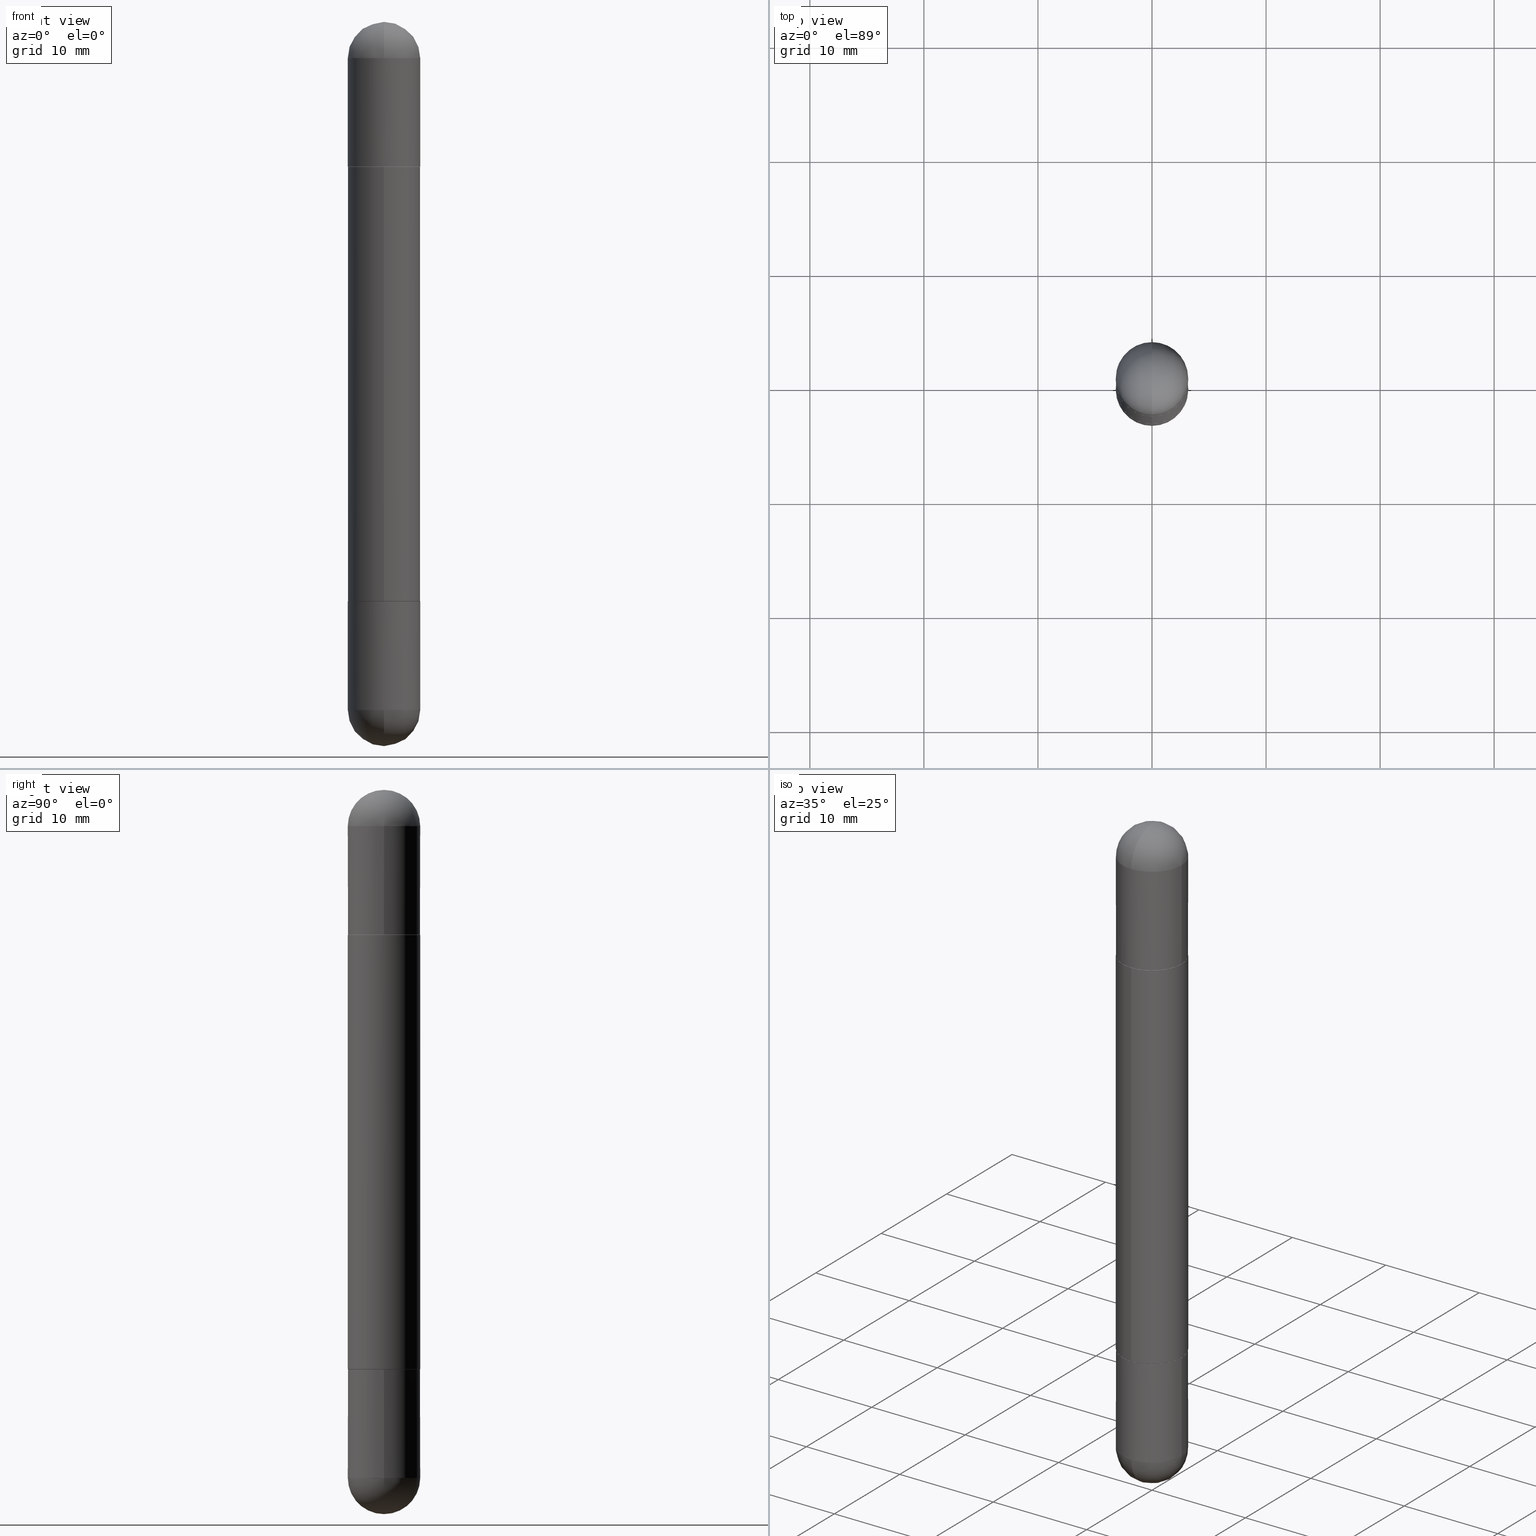
[diagram: canonical four-view strip — front | top / right | iso, engineering-drawing reading convention]
A machine part, canonical four-view strip (front | top / right | iso — engineering-drawing reading convention). The complete STEP part file that produces these views, byte-faithful:
ISO-10303-21;
HEADER;
FILE_DESCRIPTION (( 'STEP AP203' ),
    '1' );
FILE_NAME ('31232.STEP',
    '2024-03-01T12:41:17',
    ( '' ),
    ( '' ),
    'SwSTEP 2.0',
    'SolidWorks 2023',
    '' );
FILE_SCHEMA (( 'CONFIG_CONTROL_DESIGN' ));
ENDSEC;

DATA;
#1 = CARTESIAN_POINT ( 'NONE',  ( 0.1250000000000000000, -8.510485763430165164E-15, -0.1250000000000004441 ) ) ;
#2 = CARTESIAN_POINT ( 'NONE',  ( 4.890937612370273194E-29, -6.982962677686291165E-15, -0.5000000000000006661 ) ) ;
#3 = VERTEX_POINT ( 'NONE', #607 ) ;
#4 = LINE ( 'NONE', #463, #551 ) ;
#5 = DIRECTION ( 'NONE',  ( 1.000000000000000000, -6.982962677686265922E-15, -4.883557194083112901E-29 ) ) ;
#6 = DIRECTION ( 'NONE',  ( 4.851104656541418659E-15, 0.7071067811866162955, -0.7071067811864787389 ) ) ;
#7 = AXIS2_PLACEMENT_3D ( 'NONE', #44, #98, #654 ) ;
#8 = AXIS2_PLACEMENT_3D ( 'NONE', #104, #293, #492 ) ;
#9 = EDGE_LOOP ( 'NONE', ( #51, #401, #313, #57, #394 ) ) ;
#10 = CARTESIAN_POINT ( 'NONE',  ( 5.476868636775814291E-29, -8.766450547892521992E-15, -0.1250000000000004441 ) ) ;
#11 = CIRCLE ( 'NONE', #537, 0.1250000000000000000 ) ;
#12 = CYLINDRICAL_SURFACE ( 'NONE', #372, 0.1250000000000000000 ) ;
#13 = CONICAL_SURFACE ( 'NONE', #424, 0.1239999999999999991, 0.7853981633975420928 ) ;
#14 = VERTEX_POINT ( 'NONE', #92 ) ;
#15 = DIRECTION ( 'NONE',  ( -2.444771269362750222E-29, 3.492480251274133284E-15, 1.000000000000000000 ) ) ;
#16 = DIRECTION ( 'NONE',  ( 1.000000000000000000, -6.982962677686266711E-15, 0.000000000000000000 ) ) ;
#17 = ORIENTED_EDGE ( 'NONE', *, *, #34, .F. ) ;
#18 = FACE_OUTER_BOUND ( 'NONE', #149, .T. ) ;
#19 = CARTESIAN_POINT ( 'NONE',  ( 4.887097767456136437E-29, -6.981468022296989984E-15, -0.5010000000000010001 ) ) ;
#20 = ORIENTED_EDGE ( 'NONE', *, *, #578, .T. ) ;
#21 = AXIS2_PLACEMENT_3D ( 'NONE', #758, #764, #121 ) ;
#22 = CIRCLE ( 'NONE', #39, 0.1250000000000001943 ) ;
#23 = MECHANICAL_CONTEXT ( 'NONE', #333, 'mechanical' ) ;
#24 = CARTESIAN_POINT ( 'NONE',  ( 4.889542538725499884E-29, -6.984960502548264991E-15, -1.999999999999999778 ) ) ;
#25 = EDGE_LOOP ( 'NONE', ( #691, #745, #664, #766 ) ) ;
#26 = AXIS2_PLACEMENT_3D ( 'NONE', #641, #76, #128 ) ;
#27 = APPLICATION_CONTEXT ( 'configuration controlled 3d designs of mechanical parts and assemblies' ) ;
#28 = LENGTH_MEASURE_WITH_UNIT ( LENGTH_MEASURE( 0.02539999999999999897 ), #291 );
#29 = ADVANCED_FACE ( 'NONE', ( #229 ), #95, .F. ) ;
#30 = DIRECTION ( 'NONE',  ( -6.982962677686265133E-15, -1.000000000000000000, 0.000000000000000000 ) ) ;
#31 = EDGE_LOOP ( 'NONE', ( #720, #572, #760, #679, #105 ) ) ;
#32 = CARTESIAN_POINT ( 'NONE',  ( 4.887097767456136437E-29, -6.981468022296989984E-15, -0.5010000000000010001 ) ) ;
#33 = CARTESIAN_POINT ( 'NONE',  ( 5.476868636775814291E-29, -8.766450547892521992E-15, -0.1250000000000004441 ) ) ;
#34 = EDGE_CURVE ( 'NONE', #805, #3, #328, .T. ) ;
#35 = ORIENTED_EDGE ( 'NONE', *, *, #646, .F. ) ;
#36 = ORIENTED_EDGE ( 'NONE', *, *, #343, .T. ) ;
#37 = AXIS2_PLACEMENT_3D ( 'NONE', #815, #113, #487 ) ;
#38 = PERSON_AND_ORGANIZATION_ROLE ( 'design_owner' ) ;
#39 = AXIS2_PLACEMENT_3D ( 'NONE', #283, #474, #40 ) ;
#40 = DIRECTION ( 'NONE',  ( 6.860497997771529196E-15, 1.000000000000000000, 0.000000000000000000 ) ) ;
#41 = DIRECTION ( 'NONE',  ( 1.000000000000000000, -6.982962677686266711E-15, 0.000000000000000000 ) ) ;
#42 = CC_DESIGN_APPROVAL ( #294, ( #649 ) ) ;
#43 = CARTESIAN_POINT ( 'NONE',  ( 0.1250000000000000000, -8.728703347107833388E-16, 6.095220969744919741E-30 ) ) ;
#44 = CARTESIAN_POINT ( 'NONE',  ( 0.000000000000000000, 0.000000000000000000, -2.500000000000000444 ) ) ;
#45 = VERTEX_POINT ( 'NONE', #485 ) ;
#46 = DIRECTION ( 'NONE',  ( -6.982962677686265922E-15, -1.000000000000000000, -3.304654831045479808E-15 ) ) ;
#47 = CARTESIAN_POINT ( 'NONE',  ( 4.890937612370273194E-29, -6.982962677686291165E-15, -2.000000000000000000 ) ) ;
#48 = ADVANCED_FACE ( 'NONE', ( #793 ), #13, .T. ) ;
#49 = AXIS2_PLACEMENT_3D ( 'NONE', #167, #675, #101 ) ;
#50 = DIRECTION ( 'NONE',  ( -2.444771269362750222E-29, 3.492480251274133284E-15, 1.000000000000000000 ) ) ;
#51 = ORIENTED_EDGE ( 'NONE', *, *, #440, .F. ) ;
#52 = ADVANCED_FACE ( 'NONE', ( #482 ), #409, .T. ) ;
#53 = CARTESIAN_POINT ( 'NONE',  ( 4.889542538725501005E-29, -6.984960502548265780E-15, -2.000000000000000000 ) ) ;
#54 = PRODUCT_DEFINITION ( 'UNKNOWN', '', #649, #817 ) ;
#55 = DIRECTION ( 'NONE',  ( -6.982962677686265922E-15, -1.000000000000000000, -3.492480251274133284E-15 ) ) ;
#56 = ADVANCED_FACE ( 'NONE', ( #665 ), #160, .T. ) ;
#57 = ORIENTED_EDGE ( 'NONE', *, *, #476, .F. ) ;
#58 = DIRECTION ( 'NONE',  ( 1.000000000000000000, -6.982962677686270655E-15, 0.000000000000000000 ) ) ;
#59 = AXIS2_PLACEMENT_3D ( 'NONE', #2, #65, #263 ) ;
#60 = AXIS2_PLACEMENT_3D ( 'NONE', #419, #674, #661 ) ;
#61 = ORIENTED_EDGE ( 'NONE', *, *, #440, .T. ) ;
#62 = DIRECTION ( 'NONE',  ( -2.444771269362750222E-29, 3.492480251274133284E-15, -1.000000000000000000 ) ) ;
#63 = AXIS2_PLACEMENT_3D ( 'NONE', #385, #638, #642 ) ;
#64 = DIRECTION ( 'NONE',  ( 2.445468806185136597E-29, -3.491481338843145583E-15, 1.000000000000000000 ) ) ;
#65 = DIRECTION ( 'NONE',  ( 2.445468806185136597E-29, -3.491481338843145583E-15, 1.000000000000000000 ) ) ;
#66 = EDGE_LOOP ( 'NONE', ( #429, #475 ) ) ;
#67 = DIRECTION ( 'NONE',  ( 1.000000000000000000, -6.982962677686266711E-15, 0.000000000000000000 ) ) ;
#68 = DIRECTION ( 'NONE',  ( 2.445468806185136597E-29, -3.491481338843145583E-15, 1.000000000000000000 ) ) ;
#69 = DIRECTION ( 'NONE',  ( -1.000000000000000000, 6.982962677686265922E-15, 4.876176775795935793E-29 ) ) ;
#70 = ORIENTED_EDGE ( 'NONE', *, *, #349, .F. ) ;
#71 = ADVANCED_FACE ( 'NONE', ( #602 ), #163, .T. ) ;
#72 = CARTESIAN_POINT ( 'NONE',  ( 5.807988414689700538E-29, -8.292268179752471696E-15, -0.1250000000000004441 ) ) ;
#73 = DIRECTION ( 'NONE',  ( 1.000000000000000000, -6.982962677686266711E-15, 4.876176775795935793E-29 ) ) ;
#74 = AXIS2_PLACEMENT_3D ( 'NONE', #32, #544, #222 ) ;
#75 = ORIENTED_EDGE ( 'NONE', *, *, #563, .F. ) ;
#76 = DIRECTION ( 'NONE',  ( -2.445468806185136597E-29, 3.491481338843145583E-15, 1.000000000000000000 ) ) ;
#77 = PERSON ( 'UNSPECIFIED', 'UNSPECIFIED', 'UNSPECIFIED', ('UNSPECIFIED'), ('UNSPECIFIED'), ('UNSPECIFIED') ) ;
#78 = LINE ( 'NONE', #125, #305 ) ;
#79 = ORIENTED_EDGE ( 'NONE', *, *, #132, .T. ) ;
#80 = CARTESIAN_POINT ( 'NONE',  ( -8.575622497213856334E-16, -0.1250000000000086320, -0.1250000000000008882 ) ) ;
#81 = DIRECTION ( 'NONE',  ( 2.438088387897960049E-29, -3.491481338843145188E-15, 1.000000000000000000 ) ) ;
#82 = VERTEX_POINT ( 'NONE', #99 ) ;
#83 = DIRECTION ( 'NONE',  ( -2.445468806185136597E-29, 3.491481338843145583E-15, 1.000000000000000000 ) ) ;
#84 = ORIENTED_EDGE ( 'NONE', *, *, #426, .T. ) ;
#85 = CARTESIAN_POINT ( 'NONE',  ( 8.575622497214918338E-16, 0.1249999999999932554, -0.5010000000000006670 ) ) ;
#86 = VERTEX_POINT ( 'NONE', #355 ) ;
#87 = DIRECTION ( 'NONE',  ( 2.444771269362750222E-29, -3.492480251274133284E-15, 1.000000000000000000 ) ) ;
#88 = PERSON_AND_ORGANIZATION_ROLE ( 'design_supplier' ) ;
#89 = EDGE_CURVE ( 'NONE', #14, #260, #430, .T. ) ;
#90 = CARTESIAN_POINT ( 'NONE',  ( 5.476868636775814291E-29, -8.766450547892521992E-15, -2.375000000000000000 ) ) ;
#91 = ORIENTED_EDGE ( 'NONE', *, *, #89, .F. ) ;
#92 = CARTESIAN_POINT ( 'NONE',  ( -8.728703347107444874E-16, -0.1250000000000044964, -1.250000000000000222 ) ) ;
#93 =( CONVERSION_BASED_UNIT ( 'INCH', #28 ) LENGTH_UNIT ( ) NAMED_UNIT ( #504 ) );
#94 = DIRECTION ( 'NONE',  ( -2.444771269362750222E-29, 3.492480251274133284E-15, -1.000000000000000000 ) ) ;
#95 = PLANE ( 'NONE',  #699 ) ;
#96 = CIRCLE ( 'NONE', #775, 0.1250000000000000000 ) ;
#97 = CARTESIAN_POINT ( 'NONE',  ( 0.000000000000000000, 0.000000000000000000, 0.000000000000000000 ) ) ;
#98 = DIRECTION ( 'NONE',  ( -2.444771269362750222E-29, 3.492480251274133284E-15, -1.000000000000000000 ) ) ;
#99 = CARTESIAN_POINT ( 'NONE',  ( 8.728703347108403340E-16, 0.1249999999999915623, -0.1250000000000000000 ) ) ;
#100 = CIRCLE ( 'NONE', #633, 0.1239999999999999991 ) ;
#101 = DIRECTION ( 'NONE',  ( 1.000000000000000000, -6.982962677686266711E-15, 4.876176775795935793E-29 ) ) ;
#102 = EDGE_CURVE ( 'NONE', #437, #318, #546, .T. ) ;
#103 = DIRECTION ( 'NONE',  ( -2.445468806185136597E-29, 3.491481338843145583E-15, -1.000000000000000000 ) ) ;
#104 = CARTESIAN_POINT ( 'NONE',  ( 4.887097767456136437E-29, -6.981468022296989984E-15, -0.5010000000000010001 ) ) ;
#105 = ORIENTED_EDGE ( 'NONE', *, *, #718, .T. ) ;
#106 = EDGE_CURVE ( 'NONE', #741, #241, #630, .T. ) ;
#107 = VECTOR ( 'NONE', #503, 39.37007874015748143 ) ;
#108 = AXIS2_PLACEMENT_3D ( 'NONE', #308, #570, #801 ) ;
#109 = DIRECTION ( 'NONE',  ( 2.445468806185136597E-29, -3.491481338843145583E-15, 1.000000000000000000 ) ) ;
#110 = APPROVAL_STATUS ( 'not_yet_approved' ) ;
#111 = CIRCLE ( 'NONE', #298, 0.1250000000000001943 ) ;
#112 = EDGE_CURVE ( 'NONE', #45, #273, #459, .T. ) ;
#113 = DIRECTION ( 'NONE',  ( -2.445468806185136597E-29, 3.491481338843145583E-15, 1.000000000000000000 ) ) ;
#114 = ORIENTED_EDGE ( 'NONE', *, *, #728, .F. ) ;
#115 = DIRECTION ( 'NONE',  ( -6.982962677686265922E-15, -1.000000000000000000, -3.304654831045479808E-15 ) ) ;
#116 = ORIENTED_EDGE ( 'NONE', *, *, #808, .F. ) ;
#117 = PRODUCT_RELATED_PRODUCT_CATEGORY ( 'detail', '', ( #515 ) ) ;
#118 = LINE ( 'NONE', #374, #657 ) ;
#119 = AXIS2_PLACEMENT_3D ( 'NONE', #443, #5, #580 ) ;
#120 = AXIS2_PLACEMENT_3D ( 'NONE', #610, #407, #228 ) ;
#121 = DIRECTION ( 'NONE',  ( 1.000000000000000000, -6.982962677686270655E-15, 0.000000000000000000 ) ) ;
#122 = ORIENTED_EDGE ( 'NONE', *, *, #792, .F. ) ;
#123 = DIRECTION ( 'NONE',  ( -2.445468806185136597E-29, 3.491481338843145583E-15, -1.000000000000000000 ) ) ;
#124 = DIRECTION ( 'NONE',  ( -2.445468806185136877E-29, 3.491481338843145188E-15, -1.000000000000000000 ) ) ;
#125 = CARTESIAN_POINT ( 'NONE',  ( 8.507017517237187427E-16, 0.1239999999999930186, -0.5000000000000005551 ) ) ;
#126 = ADVANCED_FACE ( 'NONE', ( #477 ), #729, .F. ) ;
#127 = ORIENTED_EDGE ( 'NONE', *, *, #808, .T. ) ;
#128 = DIRECTION ( 'NONE',  ( 1.000000000000000000, -6.982962677686270655E-15, 0.000000000000000000 ) ) ;
#129 = CARTESIAN_POINT ( 'NONE',  ( -0.1250000000000000000, -6.749437009019255804E-15, -2.000000000000000000 ) ) ;
#130 = CARTESIAN_POINT ( 'NONE',  ( -0.1250000000000000000, 8.881784197001252323E-16, -6.148668862818632227E-30 ) ) ;
#131 = EDGE_LOOP ( 'NONE', ( #659, #368 ) ) ;
#132 = EDGE_CURVE ( 'NONE', #549, #805, #501, .T. ) ;
#133 = LINE ( 'NONE', #266, #794 ) ;
#134 = AXIS2_PLACEMENT_3D ( 'NONE', #379, #64, #311 ) ;
#135 = FACE_OUTER_BOUND ( 'NONE', #771, .T. ) ;
#136 = CONICAL_SURFACE ( 'NONE', #373, 0.1239999999999999991, 0.7853981633975420928 ) ;
#137 = ORIENTED_EDGE ( 'NONE', *, *, #106, .F. ) ;
#138 = EDGE_CURVE ( 'NONE', #461, #539, #221, .T. ) ;
#139 = DIRECTION ( 'NONE',  ( -7.105427357601000281E-15, -1.000000000000000000, 0.000000000000000000 ) ) ;
#140 = VECTOR ( 'NONE', #62, 39.37007874015748143 ) ;
#141 = CARTESIAN_POINT ( 'NONE',  ( 5.787897026856327965E-29, -9.195231672753244292E-15, -2.561107494060246644E-16 ) ) ;
#142 = EDGE_LOOP ( 'NONE', ( #655, #779, #561, #347 ) ) ;
#143 = CARTESIAN_POINT ( 'NONE',  ( 0.000000000000000000, 0.000000000000000000, -2.500000000000000444 ) ) ;
#144 = CARTESIAN_POINT ( 'NONE',  ( 5.476868636775814291E-29, -8.766450547892521992E-15, -0.1250000000000004441 ) ) ;
#145 = ORIENTED_EDGE ( 'NONE', *, *, #576, .T. ) ;
#146 = APPROVAL ( #217, 'UNSPECIFIED' ) ;
#147 = LINE ( 'NONE', #43, #325 ) ;
#148 = DIRECTION ( 'NONE',  ( -2.444771269362750222E-29, 3.492480251274133284E-15, 1.000000000000000000 ) ) ;
#149 = EDGE_LOOP ( 'NONE', ( #199, #716, #496, #181, #331 ) ) ;
#150 = CIRCLE ( 'NONE', #255, 0.1239999999999999991 ) ;
#151 = AXIS2_PLACEMENT_3D ( 'NONE', #438, #631, #248 ) ;
#152 = CARTESIAN_POINT ( 'NONE',  ( 4.887097767456136437E-29, -6.981468022296989984E-15, -0.5010000000000010001 ) ) ;
#153 = APPROVAL_ROLE ( '' ) ;
#154 = DIRECTION ( 'NONE',  ( -6.982962677686265922E-15, -1.000000000000000000, 4.406206441393973340E-15 ) ) ;
#155 = VECTOR ( 'NONE', #650, 39.37007874015748143 ) ;
#156 = EDGE_LOOP ( 'NONE', ( #246, #592, #145, #481 ) ) ;
#157 = CARTESIAN_POINT ( 'NONE',  ( 8.728703347108321496E-16, 0.1249999999999930195, -0.5000000000000001110 ) ) ;
#158 = COORDINATED_UNIVERSAL_TIME_OFFSET ( 5, 0, .BEHIND. ) ;
#159 = CARTESIAN_POINT ( 'NONE',  ( 4.890937612370273194E-29, -6.982962677686291165E-15, -0.5000000000000006661 ) ) ;
#160 = CYLINDRICAL_SURFACE ( 'NONE', #388, 0.1250000000000000000 ) ;
#161 =( NAMED_UNIT ( * ) SI_UNIT ( $, .STERADIAN. ) SOLID_ANGLE_UNIT ( ) );
#162 = DIRECTION ( 'NONE',  ( 2.445468806185136597E-29, -3.491481338843145583E-15, 1.000000000000000000 ) ) ;
#163 = SPHERICAL_SURFACE ( 'NONE', #60, 0.1250000000000001943 ) ;
#164 = PERSON_AND_ORGANIZATION_ROLE ( 'creator' ) ;
#165 = AXIS2_PLACEMENT_3D ( 'NONE', #157, #663, #223 ) ;
#166 = EDGE_CURVE ( 'NONE', #194, #567, #739, .T. ) ;
#167 = CARTESIAN_POINT ( 'NONE',  ( 0.000000000000000000, 0.000000000000000000, 0.000000000000000000 ) ) ;
#168 = ORIENTED_EDGE ( 'NONE', *, *, #198, .T. ) ;
#169 = COORDINATED_UNIVERSAL_TIME_OFFSET ( 5, 0, .BEHIND. ) ;
#170 = DIRECTION ( 'NONE',  ( 1.000000000000000000, -6.860497997771530774E-15, -4.840798879624142912E-29 ) ) ;
#171 = ADVANCED_FACE ( 'NONE', ( #731 ), #726, .T. ) ;
#172 = EDGE_LOOP ( 'NONE', ( #203, #648, #91, #75 ) ) ;
#173 = MANIFOLD_SOLID_BREP ( 'Combine1', #765 ) ;
#174 = MANIFOLD_SOLID_BREP ( 'Mirror4[1]', #356 ) ;
#175 = EDGE_CURVE ( 'NONE', #596, #279, #672, .T. ) ;
#176 = DIRECTION ( 'NONE',  ( -2.444771269362749942E-29, 3.492480251274133284E-15, 1.000000000000000000 ) ) ;
#177 = ORIENTED_EDGE ( 'NONE', *, *, #240, .F. ) ;
#178 = ADVANCED_FACE ( 'NONE', ( #278 ), #353, .T. ) ;
#179 = AXIS2_PLACEMENT_3D ( 'NONE', #288, #480, #339 ) ;
#180 = DIRECTION ( 'NONE',  ( -6.982962677686265922E-15, -1.000000000000000000, 4.370956789862812472E-15 ) ) ;
#181 = ORIENTED_EDGE ( 'NONE', *, *, #337, .F. ) ;
#182 = AXIS2_PLACEMENT_3D ( 'NONE', #97, #656, #398 ) ;
#183 = CARTESIAN_POINT ( 'NONE',  ( 4.887097767456136437E-29, -6.981468022296989984E-15, -1.998999999999999666 ) ) ;
#184 = ORIENTED_EDGE ( 'NONE', *, *, #604, .T. ) ;
#185 = CLOSED_SHELL ( 'NONE', ( #799, #282, #435, #126, #695 ) ) ;
#186 = CARTESIAN_POINT ( 'NONE',  ( 0.1250000000000000000, -8.728703347107833388E-16, -2.500000000000000444 ) ) ;
#187 = EDGE_LOOP ( 'NONE', ( #403, #292, #249, #336, #643 ) ) ;
#188 = ADVANCED_FACE ( 'NONE', ( #790 ), #673, .F. ) ;
#189 = DIRECTION ( 'NONE',  ( -2.444771269362750222E-29, 3.492480251274133284E-15, -1.000000000000000000 ) ) ;
#190 = ADVANCED_FACE ( 'NONE', ( #275 ), #412, .F. ) ;
#191 = CARTESIAN_POINT ( 'NONE',  ( 4.889542538725499884E-29, -6.984960502548264991E-15, -0.5000000000000009992 ) ) ;
#192 = AXIS2_PLACEMENT_3D ( 'NONE', #744, #170, #425 ) ;
#193 = DIRECTION ( 'NONE',  ( -6.982962677686265922E-15, -1.000000000000000000, -3.304654831045479808E-15 ) ) ;
#194 = VERTEX_POINT ( 'NONE', #715 ) ;
#195 = DIRECTION ( 'NONE',  ( -1.000000000000000000, 6.982962677686265922E-15, 4.883557194083112340E-29 ) ) ;
#196 = DIRECTION ( 'NONE',  ( -2.444771269362750222E-29, 3.492480251274133284E-15, -1.000000000000000000 ) ) ;
#197 = CARTESIAN_POINT ( 'NONE',  ( -8.728703347107842263E-16, -0.1250000000000001388, -2.500000000000001332 ) ) ;
#198 = EDGE_CURVE ( 'NONE', #549, #797, #22, .T. ) ;
#199 = ORIENTED_EDGE ( 'NONE', *, *, #803, .F. ) ;
#200 = CARTESIAN_POINT ( 'NONE',  ( -8.658873720330480207E-16, -0.1240000000000069796, -0.5000000000000013323 ) ) ;
#201 = CC_DESIGN_PERSON_AND_ORGANIZATION_ASSIGNMENT ( #274, #164, ( #54 ) ) ;
#202 = DIRECTION ( 'NONE',  ( 4.851104656541418659E-15, 0.7071067811866162955, -0.7071067811864787389 ) ) ;
#203 = ORIENTED_EDGE ( 'NONE', *, *, #112, .F. ) ;
#204 = EDGE_CURVE ( 'NONE', #279, #596, #418, .T. ) ;
#205 = CYLINDRICAL_SURFACE ( 'NONE', #464, 0.1250000000000001388 ) ;
#206 = AXIS2_PLACEMENT_3D ( 'NONE', #326, #317, #586 ) ;
#207 = DIRECTION ( 'NONE',  ( -2.445468806185136877E-29, 3.491481338843145188E-15, 1.000000000000000000 ) ) ;
#208 = AXIS2_PLACEMENT_3D ( 'NONE', #396, #796, #605 ) ;
#209 = ORIENTED_EDGE ( 'NONE', *, *, #517, .T. ) ;
#210 = DIRECTION ( 'NONE',  ( 1.000000000000000000, -6.982962677686266711E-15, 0.000000000000000000 ) ) ;
#211 = DIRECTION ( 'NONE',  ( 2.444771269362750222E-29, -3.492480251274133284E-15, 1.000000000000000000 ) ) ;
#212 = EDGE_LOOP ( 'NONE', ( #376, #168, #587, #813 ) ) ;
#213 = CALENDAR_DATE ( 2024, 1, 3 ) ;
#214 = DIRECTION ( 'NONE',  ( 6.982962677686265922E-15, 1.000000000000000000, -4.370956789862814839E-15 ) ) ;
#215 = ORIENTED_EDGE ( 'NONE', *, *, #362, .T. ) ;
#216 = EDGE_LOOP ( 'NONE', ( #614, #84, #284, #264 ) ) ;
#217 = APPROVAL_STATUS ( 'not_yet_approved' ) ;
#218 = ADVANCED_FACE ( 'NONE', ( #348 ), #136, .T. ) ;
#219 = DIRECTION ( 'NONE',  ( -1.000000000000000000, 6.982962677686265922E-15, -4.883557194083112901E-29 ) ) ;
#220 = ORIENTED_EDGE ( 'NONE', *, *, #204, .F. ) ;
#221 = CIRCLE ( 'NONE', #272, 0.1250000000000000000 ) ;
#222 = DIRECTION ( 'NONE',  ( -6.982962677686265922E-15, -1.000000000000000000, -3.278217592397109157E-15 ) ) ;
#223 = DIRECTION ( 'NONE',  ( -1.000000000000000000, 6.982962677686265922E-15, 4.876176775795935793E-29 ) ) ;
#224 = APPROVAL_PERSON_ORGANIZATION ( #287, #146, #153 ) ;
#225 = EDGE_LOOP ( 'NONE', ( #177, #209, #280, #625 ) ) ;
#226 = DIRECTION ( 'NONE',  ( -6.982962677686265922E-15, -1.000000000000000000, -3.304654831045479808E-15 ) ) ;
#227 = DATE_AND_TIME ( #410, #725 ) ;
#228 = DIRECTION ( 'NONE',  ( -6.982962677686265922E-15, -1.000000000000000000, -3.304654831045479808E-15 ) ) ;
#229 = FACE_OUTER_BOUND ( 'NONE', #66, .T. ) ;
#230 = DATE_AND_TIME ( #338, #405 ) ;
#231 = DIRECTION ( 'NONE',  ( -1.000000000000000000, 6.982962677686265922E-15, 4.883557194083112340E-29 ) ) ;
#232 = DIRECTION ( 'NONE',  ( -0.000000000000000000, -0.000000000000000000, -1.000000000000000000 ) ) ;
#233 = CIRCLE ( 'NONE', #8, 0.1250000000000002498 ) ;
#234 = AXIS2_PLACEMENT_3D ( 'NONE', #144, #658, #600 ) ;
#235 = CC_DESIGN_SECURITY_CLASSIFICATION ( #479, ( #649 ) ) ;
#236 = CYLINDRICAL_SURFACE ( 'NONE', #49, 0.1250000000000000000 ) ;
#237 = CC_DESIGN_DATE_AND_TIME_ASSIGNMENT ( #227, #483, ( #479 ) ) ;
#238 = APPROVAL_ROLE ( '' ) ;
#239 = DIRECTION ( 'NONE',  ( 1.000000000000000000, -6.982962677686265922E-15, -4.883557194083112901E-29 ) ) ;
#240 = EDGE_CURVE ( 'NONE', #453, #702, #489, .T. ) ;
#241 = VERTEX_POINT ( 'NONE', #85 ) ;
#242 = CARTESIAN_POINT ( 'NONE',  ( 4.889542538725501005E-29, -6.984960502548265780E-15, -0.5000000000000006661 ) ) ;
#243 = VERTEX_POINT ( 'NONE', #484 ) ;
#244 = AXIS2_PLACEMENT_3D ( 'NONE', #680, #239, #624 ) ;
#245 = DIRECTION ( 'NONE',  ( -4.937700262165011104E-15, -0.7071067811866114106, -0.7071067811864836239 ) ) ;
#246 = ORIENTED_EDGE ( 'NONE', *, *, #426, .F. ) ;
#247 = CIRCLE ( 'NONE', #63, 0.1250000000000001943 ) ;
#248 = DIRECTION ( 'NONE',  ( 1.000000000000000000, -6.982962677686270655E-15, 0.000000000000000000 ) ) ;
#249 = ORIENTED_EDGE ( 'NONE', *, *, #277, .T. ) ;
#250 = DIRECTION ( 'NONE',  ( -1.000000000000000000, 7.105427357601001070E-15, -4.926315508542082329E-29 ) ) ;
#251 = SPHERICAL_SURFACE ( 'NONE', #119, 0.1250000000000001943 ) ;
#252 = FACE_OUTER_BOUND ( 'NONE', #142, .T. ) ;
#253 = EDGE_LOOP ( 'NONE', ( #35, #635, #469, #816 ) ) ;
#254 = CARTESIAN_POINT ( 'NONE',  ( -0.1250000000000000000, 8.575622497214414453E-16, -2.500000000000000444 ) ) ;
#255 = AXIS2_PLACEMENT_3D ( 'NONE', #364, #746, #46 ) ;
#256 = ADVANCED_FACE ( 'NONE', ( #735 ), #416, .T. ) ;
#257 = DIRECTION ( 'NONE',  ( -4.937700262165011104E-15, -0.7071067811866114106, 0.7071067811864836239 ) ) ;
#258 = CIRCLE ( 'NONE', #399, 0.1239999999999999991 ) ;
#259 = LINE ( 'NONE', #197, #473 ) ;
#260 = VERTEX_POINT ( 'NONE', #538 ) ;
#261 = DIRECTION ( 'NONE',  ( -6.982962677686265922E-15, -1.000000000000000000, 4.406206441393973340E-15 ) ) ;
#262 = CC_DESIGN_APPROVAL ( #146, ( #54 ) ) ;
#263 = DIRECTION ( 'NONE',  ( 1.000000000000000000, -6.982962677686270655E-15, 0.000000000000000000 ) ) ;
#264 = ORIENTED_EDGE ( 'NONE', *, *, #289, .T. ) ;
#265 = ADVANCED_FACE ( 'NONE', ( #613 ), #798, .T. ) ;
#266 = CARTESIAN_POINT ( 'NONE',  ( -0.1250000000000000000, 8.575622497214414453E-16, -2.500000000000000444 ) ) ;
#267 = FACE_OUTER_BOUND ( 'NONE', #31, .T. ) ;
#268 = EDGE_LOOP ( 'NONE', ( #620, #79, #340, #61 ) ) ;
#269 = DIRECTION ( 'NONE',  ( -2.445468806185136597E-29, 3.491481338843145583E-15, -1.000000000000000000 ) ) ;
#270 = EDGE_CURVE ( 'NONE', #682, #273, #554, .T. ) ;
#271 = DIRECTION ( 'NONE',  ( -6.982962677686265922E-15, -1.000000000000000000, -4.370956789862816416E-15 ) ) ;
#272 = AXIS2_PLACEMENT_3D ( 'NONE', #667, #83, #598 ) ;
#273 = VERTEX_POINT ( 'NONE', #432 ) ;
#274 = PERSON_AND_ORGANIZATION ( #77, #588 ) ;
#275 = FACE_OUTER_BOUND ( 'NONE', #131, .T. ) ;
#276 = EDGE_LOOP ( 'NONE', ( #736, #548 ) ) ;
#277 = EDGE_CURVE ( 'NONE', #243, #86, #750, .T. ) ;
#278 = FACE_OUTER_BOUND ( 'NONE', #25, .T. ) ;
#279 = VERTEX_POINT ( 'NONE', #807 ) ;
#280 = ORIENTED_EDGE ( 'NONE', *, *, #420, .T. ) ;
#281 = APPROVAL_STATUS ( 'not_yet_approved' ) ;
#282 = ADVANCED_FACE ( 'NONE', ( #428 ), #370, .T. ) ;
#283 = CARTESIAN_POINT ( 'NONE',  ( 5.476868636775814291E-29, -8.766450547892521992E-15, -0.1250000000000004441 ) ) ;
#284 = ORIENTED_EDGE ( 'NONE', *, *, #495, .T. ) ;
#285 = AXIS2_PLACEMENT_3D ( 'NONE', #33, #231, #30 ) ;
#286 = CARTESIAN_POINT ( 'NONE',  ( 8.728703347108321496E-16, 0.1249999999999930195, -2.000000000000000444 ) ) ;
#287 = PERSON_AND_ORGANIZATION ( #77, #588 ) ;
#288 = CARTESIAN_POINT ( 'NONE',  ( 4.887097767456136437E-29, -6.981468022296989984E-15, -1.998999999999999666 ) ) ;
#289 = EDGE_CURVE ( 'NONE', #371, #82, #708, .T. ) ;
#290 = APPROVAL_PERSON_ORGANIZATION ( #471, #294, #653 ) ;
#291 =( LENGTH_UNIT ( ) NAMED_UNIT ( * ) SI_UNIT ( $, .METRE. ) );
#292 = ORIENTED_EDGE ( 'NONE', *, *, #349, .T. ) ;
#293 = DIRECTION ( 'NONE',  ( 2.444771269362750222E-29, -3.492480251274133284E-15, 1.000000000000000000 ) ) ;
#294 = APPROVAL ( #281, 'UNSPECIFIED' ) ;
#295 = CARTESIAN_POINT ( 'NONE',  ( 3.055964086703438408E-29, -4.365600314092667690E-15, -1.250000000000000222 ) ) ;
#296 = CIRCLE ( 'NONE', #441, 0.1239999999999999991 ) ;
#297 = CC_DESIGN_APPROVAL ( #378, ( #479 ) ) ;
#298 = AXIS2_PLACEMENT_3D ( 'NONE', #590, #250, #139 ) ;
#299 = EDGE_LOOP ( 'NONE', ( #397, #520, #36, #116 ) ) ;
#300 = EDGE_CURVE ( 'NONE', #682, #706, #150, .T. ) ;
#301 = LINE ( 'NONE', #749, #107 ) ;
#302 = VERTEX_POINT ( 'NONE', #615 ) ;
#303 = CARTESIAN_POINT ( 'NONE',  ( -8.575622497213856334E-16, -0.1250000000000086320, -0.1250000000000008882 ) ) ;
#304 = ORIENTED_EDGE ( 'NONE', *, *, #240, .T. ) ;
#305 = VECTOR ( 'NONE', #6, 39.37007874015748143 ) ;
#306 = AXIS2_PLACEMENT_3D ( 'NONE', #159, #785, #547 ) ;
#307 = APPROVAL_PERSON_ORGANIZATION ( #686, #378, #238 ) ;
#308 = CARTESIAN_POINT ( 'NONE',  ( 4.889542538725499884E-29, -6.984960502548264991E-15, -0.5000000000000009992 ) ) ;
#309 = ORIENTED_EDGE ( 'NONE', *, *, #402, .T. ) ;
#310 = DIRECTION ( 'NONE',  ( 1.000000000000000000, -6.982962677686270655E-15, 0.000000000000000000 ) ) ;
#311 = DIRECTION ( 'NONE',  ( 1.000000000000000000, -6.982962677686270655E-15, 0.000000000000000000 ) ) ;
#312 = CYLINDRICAL_SURFACE ( 'NONE', #814, 0.1250000000000001388 ) ;
#313 = ORIENTED_EDGE ( 'NONE', *, *, #175, .T. ) ;
#314 = ADVANCED_FACE ( 'NONE', ( #556 ), #565, .F. ) ;
#315 = CARTESIAN_POINT ( 'NONE',  ( 5.807988414689700538E-29, -8.292268179752471696E-15, -0.1250000000000004441 ) ) ;
#316 = LINE ( 'NONE', #130, #759 ) ;
#317 = DIRECTION ( 'NONE',  ( -0.000000000000000000, -0.000000000000000000, -1.000000000000000000 ) ) ;
#318 = VERTEX_POINT ( 'NONE', #498 ) ;
#319 = UNCERTAINTY_MEASURE_WITH_UNIT (LENGTH_MEASURE( 1.000000000000000082E-05 ), #93, 'distance_accuracy_value', 'NONE');
#320 = CARTESIAN_POINT ( 'NONE',  ( 8.575622497214423328E-16, 0.1250000000000001388, -2.500000000000000000 ) ) ;
#321 = ADVANCED_FACE ( 'NONE', ( #359 ), #560, .F. ) ;
#322 = CARTESIAN_POINT ( 'NONE',  ( 8.575622497214732956E-16, 0.1249999999999932554, -1.999000000000000110 ) ) ;
#323 = ORIENTED_EDGE ( 'NONE', *, *, #289, .F. ) ;
#324 = DIRECTION ( 'NONE',  ( 2.445468806185136597E-29, -3.491481338843145583E-15, 1.000000000000000000 ) ) ;
#325 = VECTOR ( 'NONE', #669, 39.37007874015748143 ) ;
#326 = CARTESIAN_POINT ( 'NONE',  ( 3.055964086703438408E-29, -4.365600314092667690E-15, -1.250000000000000222 ) ) ;
#327 = ORIENTED_EDGE ( 'NONE', *, *, #646, .T. ) ;
#328 = CIRCLE ( 'NONE', #806, 0.1250000000000000000 ) ;
#329 = DIRECTION ( 'NONE',  ( -2.444771269362750222E-29, 3.492480251274133284E-15, 1.000000000000000000 ) ) ;
#330 = CARTESIAN_POINT ( 'NONE',  ( 0.000000000000000000, 0.000000000000000000, -2.500000000000000444 ) ) ;
#331 = ORIENTED_EDGE ( 'NONE', *, *, #495, .F. ) ;
#332 = APPLICATION_PROTOCOL_DEFINITION ( 'international standard', 'config_control_design', 1994, #27 ) ;
#333 = APPLICATION_CONTEXT ( 'configuration controlled 3d designs of mechanical parts and assemblies' ) ;
#334 = CIRCLE ( 'NONE', #134, 0.1250000000000000000 ) ;
#335 = DIRECTION ( 'NONE',  ( -6.982962677686265922E-15, -1.000000000000000000, -4.370956789862816416E-15 ) ) ;
#336 = ORIENTED_EDGE ( 'NONE', *, *, #812, .T. ) ;
#337 = EDGE_CURVE ( 'NONE', #371, #685, #301, .T. ) ;
#338 = CALENDAR_DATE ( 2024, 1, 3 ) ;
#339 = DIRECTION ( 'NONE',  ( -6.982962677686265922E-15, -1.000000000000000000, 4.370956789862812472E-15 ) ) ;
#340 = ORIENTED_EDGE ( 'NONE', *, *, #34, .T. ) ;
#341 = DIRECTION ( 'NONE',  ( -6.982962677686265922E-15, -1.000000000000000000, -3.278217592397109157E-15 ) ) ;
#342 = SECURITY_CLASSIFICATION_LEVEL ( 'unclassified' ) ;
#343 = EDGE_CURVE ( 'NONE', #567, #194, #583, .T. ) ;
#344 = DIRECTION ( 'NONE',  ( -1.000000000000000000, 0.000000000000000000, 0.000000000000000000 ) ) ;
#345 = ORIENTED_EDGE ( 'NONE', *, *, #300, .F. ) ;
#346 = ADVANCED_FACE ( 'NONE', ( #357 ), #597, .T. ) ;
#347 = ORIENTED_EDGE ( 'NONE', *, *, #270, .F. ) ;
#348 = FACE_OUTER_BOUND ( 'NONE', #253, .T. ) ;
#349 = EDGE_CURVE ( 'NONE', #539, #243, #557, .T. ) ;
#350 = CIRCLE ( 'NONE', #671, 0.1250000000000000000 ) ;
#351 = AXIS2_PLACEMENT_3D ( 'NONE', #295, #232, #616 ) ;
#352 = DIRECTION ( 'NONE',  ( -2.444771269362750222E-29, 3.492480251274133284E-15, -1.000000000000000000 ) ) ;
#353 = CYLINDRICAL_SURFACE ( 'NONE', #723, 0.1250000000000001388 ) ;
#354 = CIRCLE ( 'NONE', #478, 0.1250000000000000000 ) ;
#355 = CARTESIAN_POINT ( 'NONE',  ( 0.1250000000000000000, -8.510485763430165164E-15, -2.375000000000000000 ) ) ;
#356 = CLOSED_SHELL ( 'NONE', ( #634, #569, #188, #190, #451, #178 ) ) ;
#357 = FACE_OUTER_BOUND ( 'NONE', #225, .T. ) ;
#358 = DIRECTION ( 'NONE',  ( 2.445468806185136597E-29, -3.491481338843145583E-15, 1.000000000000000000 ) ) ;
#359 = FACE_OUTER_BOUND ( 'NONE', #791, .T. ) ;
#360 = EDGE_LOOP ( 'NONE', ( #629, #381 ) ) ;
#361 = AXIS2_PLACEMENT_3D ( 'NONE', #242, #623, #55 ) ;
#362 = EDGE_CURVE ( 'NONE', #543, #302, #258, .T. ) ;
#363 = AXIS2_PLACEMENT_3D ( 'NONE', #595, #81, #69 ) ;
#364 = CARTESIAN_POINT ( 'NONE',  ( 4.889542538725499884E-29, -6.984960502548264991E-15, -0.5000000000000009992 ) ) ;
#365 = AXIS2_PLACEMENT_3D ( 'NONE', #10, #195, #447 ) ;
#366 = VERTEX_POINT ( 'NONE', #303 ) ;
#367 = CARTESIAN_POINT ( 'NONE',  ( 4.889542538725499884E-29, -6.984960502548264991E-15, -1.999999999999999778 ) ) ;
#368 = ORIENTED_EDGE ( 'NONE', *, *, #524, .T. ) ;
#369 = SHAPE_DEFINITION_REPRESENTATION ( #382, #413 ) ;
#370 = SPHERICAL_SURFACE ( 'NONE', #244, 0.1250000000000001943 ) ;
#371 = VERTEX_POINT ( 'NONE', #740 ) ;
#372 = AXIS2_PLACEMENT_3D ( 'NONE', #450, #444, #73 ) ;
#373 = AXIS2_PLACEMENT_3D ( 'NONE', #24, #148, #154 ) ;
#374 = CARTESIAN_POINT ( 'NONE',  ( 8.575622497214423328E-16, 0.1250000000000001388, -2.500000000000000000 ) ) ;
#375 = FACE_OUTER_BOUND ( 'NONE', #727, .T. ) ;
#376 = ORIENTED_EDGE ( 'NONE', *, *, #132, .F. ) ;
#377 = LINE ( 'NONE', #254, #155 ) ;
#378 = APPROVAL ( #110, 'UNSPECIFIED' ) ;
#379 = CARTESIAN_POINT ( 'NONE',  ( 5.807988414689700538E-29, -8.292268179752471696E-15, -0.1250000000000004441 ) ) ;
#380 = CARTESIAN_POINT ( 'NONE',  ( 8.507017517237187427E-16, 0.1239999999999930186, -0.5000000000000005551 ) ) ;
#381 = ORIENTED_EDGE ( 'NONE', *, *, #593, .F. ) ;
#382 = PRODUCT_DEFINITION_SHAPE ( 'NONE', 'NONE',  #54 ) ;
#383 = LINE ( 'NONE', #320, #140 ) ;
#384 = LINE ( 'NONE', #186, #724 ) ;
#385 = CARTESIAN_POINT ( 'NONE',  ( 5.476868636775814291E-29, -8.766450547892521992E-15, -2.375000000000000000 ) ) ;
#386 = ORIENTED_EDGE ( 'NONE', *, *, #703, .F. ) ;
#387 = CARTESIAN_POINT ( 'NONE',  ( -8.658873720330480207E-16, -0.1240000000000069796, -0.5000000000000013323 ) ) ;
#388 = AXIS2_PLACEMENT_3D ( 'NONE', #611, #103, #41 ) ;
#389 = DIRECTION ( 'NONE',  ( 2.445468806185136597E-29, -3.491481338843145583E-15, 1.000000000000000000 ) ) ;
#390 = EDGE_LOOP ( 'NONE', ( #309, #304 ) ) ;
#391 = DIRECTION ( 'NONE',  ( -2.445468806185136877E-29, 3.491481338843145188E-15, -1.000000000000000000 ) ) ;
#392 = CIRCLE ( 'NONE', #365, 0.1250000000000001943 ) ;
#393 = DIRECTION ( 'NONE',  ( 2.444771269362750222E-29, -3.492480251274133284E-15, 1.000000000000000000 ) ) ;
#394 = ORIENTED_EDGE ( 'NONE', *, *, #462, .F. ) ;
#395 = CARTESIAN_POINT ( 'NONE',  ( 8.541320007226054361E-16, 0.1239999999999930186, -0.5000000000000005551 ) ) ;
#396 = CARTESIAN_POINT ( 'NONE',  ( 4.889542538725501005E-29, -6.984960502548265780E-15, -0.5000000000000006661 ) ) ;
#397 = ORIENTED_EDGE ( 'NONE', *, *, #420, .F. ) ;
#398 = DIRECTION ( 'NONE',  ( 1.000000000000000000, 0.000000000000000000, 0.000000000000000000 ) ) ;
#399 = AXIS2_PLACEMENT_3D ( 'NONE', #367, #50, #753 ) ;
#400 = DIRECTION ( 'NONE',  ( 1.000000000000000000, -6.982962677686270655E-15, 0.000000000000000000 ) ) ;
#401 = ORIENTED_EDGE ( 'NONE', *, *, #767, .T. ) ;
#402 = EDGE_CURVE ( 'NONE', #702, #453, #296, .T. ) ;
#403 = ORIENTED_EDGE ( 'NONE', *, *, #502, .F. ) ;
#404 = APPROVAL_DATE_TIME ( #550, #294 ) ;
#405 = LOCAL_TIME ( 7, 41, 17.00000000000000000, #415 ) ;
#406 = CLOSED_SHELL ( 'NONE', ( #589, #52, #171, #29, #411 ) ) ;
#407 = DIRECTION ( 'NONE',  ( 2.444771269362750222E-29, -3.492480251274133284E-15, 1.000000000000000000 ) ) ;
#408 = EDGE_LOOP ( 'NONE', ( #386, #439, #688, #506 ) ) ;
#409 = SPHERICAL_SURFACE ( 'NONE', #452, 0.1250000000000001943 ) ;
#410 = CALENDAR_DATE ( 2024, 1, 3 ) ;
#411 = ADVANCED_FACE ( 'NONE', ( #627 ), #236, .T. ) ;
#412 = PLANE ( 'NONE',  #208 ) ;
#413 = ADVANCED_BREP_SHAPE_REPRESENTATION ( '31232', ( #446, #174, #448, #701, #173, #182 ), #763 ) ;
#414 = ORIENTED_EDGE ( 'NONE', *, *, #747, .T. ) ;
#415 = COORDINATED_UNIVERSAL_TIME_OFFSET ( 5, 0, .BEHIND. ) ;
#416 = CYLINDRICAL_SURFACE ( 'NONE', #7, 0.1250000000000001388 ) ;
#417 = CIRCLE ( 'NONE', #59, 0.1250000000000000000 ) ;
#418 = CIRCLE ( 'NONE', #306, 0.1250000000000000000 ) ;
#419 = CARTESIAN_POINT ( 'NONE',  ( 5.476868636775814291E-29, -8.766450547892521992E-15, -0.1250000000000004441 ) ) ;
#420 = EDGE_CURVE ( 'NONE', #241, #741, #233, .T. ) ;
#421 = DIRECTION ( 'NONE',  ( -2.445468806185136597E-29, 3.491481338843145583E-15, 1.000000000000000000 ) ) ;
#422 = AXIS2_PLACEMENT_3D ( 'NONE', #594, #15, #261 ) ;
#423 = CARTESIAN_POINT ( 'NONE',  ( 5.807988414689700538E-29, -8.292268179752471696E-15, -0.1250000000000004441 ) ) ;
#424 = AXIS2_PLACEMENT_3D ( 'NONE', #676, #352, #226 ) ;
#425 = DIRECTION ( 'NONE',  ( 6.860497997771529196E-15, 1.000000000000000000, 0.000000000000000000 ) ) ;
#426 = EDGE_CURVE ( 'NONE', #427, #366, #499, .T. ) ;
#427 = VERTEX_POINT ( 'NONE', #678 ) ;
#428 = FACE_OUTER_BOUND ( 'NONE', #216, .T. ) ;
#429 = ORIENTED_EDGE ( 'NONE', *, *, #734, .T. ) ;
#430 = CIRCLE ( 'NONE', #351, 0.1250000000000001388 ) ;
#431 = EDGE_CURVE ( 'NONE', #543, #194, #689, .T. ) ;
#432 = CARTESIAN_POINT ( 'NONE',  ( -8.728703347107363030E-16, -0.1250000000000072442, -0.5010000000000014442 ) ) ;
#433 = VECTOR ( 'NONE', #818, 39.37007874015748143 ) ;
#434 = ORIENTED_EDGE ( 'NONE', *, *, #204, .T. ) ;
#435 = ADVANCED_FACE ( 'NONE', ( #518 ), #251, .T. ) ;
#436 = CARTESIAN_POINT ( 'NONE',  ( 4.889542538725499884E-29, -6.984960502548264991E-15, -0.5000000000000009992 ) ) ;
#437 = VERTEX_POINT ( 'NONE', #129 ) ;
#438 = CARTESIAN_POINT ( 'NONE',  ( 5.807988414689700538E-29, -8.292268179752471696E-15, -0.1250000000000004441 ) ) ;
#439 = ORIENTED_EDGE ( 'NONE', *, *, #640, .T. ) ;
#440 = EDGE_CURVE ( 'NONE', #3, #797, #811, .T. ) ;
#441 = AXIS2_PLACEMENT_3D ( 'NONE', #436, #687, #115 ) ;
#442 = CARTESIAN_POINT ( 'NONE',  ( 4.889542538725499884E-29, -6.984960502548264991E-15, -1.999999999999999778 ) ) ;
#443 = CARTESIAN_POINT ( 'NONE',  ( 5.476868636775814291E-29, -8.766450547892521992E-15, -0.1250000000000004441 ) ) ;
#444 = DIRECTION ( 'NONE',  ( -2.445468806185136597E-29, 3.491481338843145583E-15, 1.000000000000000000 ) ) ;
#445 = ORIENTED_EDGE ( 'NONE', *, *, #703, .T. ) ;
#446 = MANIFOLD_SOLID_BREP ( 'Body-Move/Copy2[1]', #406 ) ;
#447 = DIRECTION ( 'NONE',  ( -6.982962677686265133E-15, -1.000000000000000000, 0.000000000000000000 ) ) ;
#448 = MANIFOLD_SOLID_BREP ( 'Mirror4[3]', #769 ) ;
#449 = CARTESIAN_POINT ( 'NONE',  ( -0.1250000000000000000, -6.780053178997941168E-15, -0.1250000000000004441 ) ) ;
#450 = CARTESIAN_POINT ( 'NONE',  ( 0.000000000000000000, 0.000000000000000000, 0.000000000000000000 ) ) ;
#451 = ADVANCED_FACE ( 'NONE', ( #507 ), #619, .T. ) ;
#452 = AXIS2_PLACEMENT_3D ( 'NONE', #668, #787, #732 ) ;
#453 = VERTEX_POINT ( 'NONE', #762 ) ;
#454 = FACE_OUTER_BOUND ( 'NONE', #606, .T. ) ;
#455 = PLANE ( 'NONE',  #363 ) ;
#456 = VERTEX_POINT ( 'NONE', #449 ) ;
#457 = DIRECTION ( 'NONE',  ( 1.000000000000000000, -6.982962677686270655E-15, 0.000000000000000000 ) ) ;
#458 = CONICAL_SURFACE ( 'NONE', #707, 0.1239999999999999991, 0.7853981633975420928 ) ;
#459 = CIRCLE ( 'NONE', #74, 0.1250000000000002498 ) ;
#460 = CARTESIAN_POINT ( 'NONE',  ( -8.658873720330480207E-16, -0.1240000000000069796, -1.999999999999999112 ) ) ;
#461 = VERTEX_POINT ( 'NONE', #754 ) ;
#462 = EDGE_CURVE ( 'NONE', #797, #500, #350, .T. ) ;
#463 = CARTESIAN_POINT ( 'NONE',  ( -8.728703347107842263E-16, -0.1250000000000001388, -2.500000000000001332 ) ) ;
#464 = AXIS2_PLACEMENT_3D ( 'NONE', #756, #189, #709 ) ;
#465 = CARTESIAN_POINT ( 'NONE',  ( -0.1250000000000000000, -6.780053178997939591E-15, -0.5000000000000006661 ) ) ;
#466 = ORIENTED_EDGE ( 'NONE', *, *, #476, .T. ) ;
#467 = PERSON_AND_ORGANIZATION_ROLE ( 'creator' ) ;
#468 = CARTESIAN_POINT ( 'NONE',  ( 4.890937612370273194E-29, -6.982962677686291165E-15, -0.5000000000000006661 ) ) ;
#469 = ORIENTED_EDGE ( 'NONE', *, *, #431, .T. ) ;
#470 = DIRECTION ( 'NONE',  ( 1.000000000000000000, -6.982962677686270655E-15, 0.000000000000000000 ) ) ;
#471 = PERSON_AND_ORGANIZATION ( #77, #588 ) ;
#472 = AXIS2_PLACEMENT_3D ( 'NONE', #53, #176, #810 ) ;
#473 = VECTOR ( 'NONE', #705, 39.37007874015748143 ) ;
#474 = DIRECTION ( 'NONE',  ( 1.000000000000000000, -6.860497997771530774E-15, -4.840798879624142912E-29 ) ) ;
#475 = ORIENTED_EDGE ( 'NONE', *, *, #102, .T. ) ;
#476 = EDGE_CURVE ( 'NONE', #500, #279, #384, .T. ) ;
#477 = FACE_OUTER_BOUND ( 'NONE', #360, .T. ) ;
#478 = AXIS2_PLACEMENT_3D ( 'NONE', #584, #526, #310 ) ;
#479 = SECURITY_CLASSIFICATION ( '', '', #342 ) ;
#480 = DIRECTION ( 'NONE',  ( -2.444771269362750222E-29, 3.492480251274133284E-15, 1.000000000000000000 ) ) ;
#481 = ORIENTED_EDGE ( 'NONE', *, *, #803, .T. ) ;
#482 = FACE_OUTER_BOUND ( 'NONE', #809, .T. ) ;
#483 = DATE_TIME_ROLE ( 'classification_date' ) ;
#484 = CARTESIAN_POINT ( 'NONE',  ( -8.881784197000694204E-16, -0.1250000000000086320, -2.374999999999999556 ) ) ;
#485 = CARTESIAN_POINT ( 'NONE',  ( 8.575622497214918338E-16, 0.1249999999999932554, -0.5010000000000006670 ) ) ;
#486 = DATE_AND_TIME ( #733, #683 ) ;
#487 = DIRECTION ( 'NONE',  ( 1.000000000000000000, -6.982962677686270655E-15, 0.000000000000000000 ) ) ;
#488 = CIRCLE ( 'NONE', #690, 0.1250000000000002498 ) ;
#489 = CIRCLE ( 'NONE', #120, 0.1239999999999999991 ) ;
#490 = DIRECTION ( 'NONE',  ( 2.438088387897960049E-29, -3.491481338843145188E-15, -1.000000000000000000 ) ) ;
#491 = EDGE_CURVE ( 'NONE', #241, #567, #118, .T. ) ;
#492 = DIRECTION ( 'NONE',  ( -6.982962677686265922E-15, -1.000000000000000000, -3.278217592397109157E-15 ) ) ;
#493 = EDGE_LOOP ( 'NONE', ( #215, #327, #786, #564 ) ) ;
#494 = CARTESIAN_POINT ( 'NONE',  ( 5.807988414689700538E-29, -8.292268179752471696E-15, -0.1250000000000004441 ) ) ;
#495 = EDGE_CURVE ( 'NONE', #366, #371, #334, .T. ) ;
#496 = ORIENTED_EDGE ( 'NONE', *, *, #593, .T. ) ;
#497 = CALENDAR_DATE ( 2024, 1, 3 ) ;
#498 = CARTESIAN_POINT ( 'NONE',  ( 0.1250000000000000000, -7.855833012397075293E-15, -2.000000000000000000 ) ) ;
#499 = CIRCLE ( 'NONE', #192, 0.1250000000000001943 ) ;
#500 = VERTEX_POINT ( 'NONE', #1 ) ;
#501 = CIRCLE ( 'NONE', #285, 0.1250000000000001943 ) ;
#502 = EDGE_CURVE ( 'NONE', #539, #437, #316, .T. ) ;
#503 = DIRECTION ( 'NONE',  ( -2.445468806185136877E-29, 3.491481338843145188E-15, -1.000000000000000000 ) ) ;
#504 = DIMENSIONAL_EXPONENTS ( 1.000000000000000000, 0.000000000000000000, 0.000000000000000000, 0.000000000000000000, 0.000000000000000000, 0.000000000000000000, 0.000000000000000000 ) ;
#505 = CIRCLE ( 'NONE', #26, 0.1250000000000000000 ) ;
#506 = ORIENTED_EDGE ( 'NONE', *, *, #277, .F. ) ;
#507 = FACE_OUTER_BOUND ( 'NONE', #652, .T. ) ;
#508 = ORIENTED_EDGE ( 'NONE', *, *, #576, .F. ) ;
#509 = FACE_OUTER_BOUND ( 'NONE', #299, .T. ) ;
#510 = DIRECTION ( 'NONE',  ( -2.444771269362750222E-29, 3.492480251274133284E-15, -1.000000000000000000 ) ) ;
#511 = ORIENTED_EDGE ( 'NONE', *, *, #640, .F. ) ;
#512 = AXIS2_PLACEMENT_3D ( 'NONE', #494, #109, #804 ) ;
#513 = CIRCLE ( 'NONE', #608, 0.1239999999999999991 ) ;
#514 = DIRECTION ( 'NONE',  ( -2.444771269362750222E-29, 3.492480251274133284E-15, -1.000000000000000000 ) ) ;
#515 = PRODUCT ( '31232', '31232', '', ( #23 ) ) ;
#516 = LOCAL_TIME ( 7, 41, 17.00000000000000000, #169 ) ;
#517 = EDGE_CURVE ( 'NONE', #453, #241, #78, .T. ) ;
#518 = FACE_OUTER_BOUND ( 'NONE', #156, .T. ) ;
#519 = DIRECTION ( 'NONE',  ( 1.000000000000000000, -6.982962677686270655E-15, 0.000000000000000000 ) ) ;
#520 = ORIENTED_EDGE ( 'NONE', *, *, #491, .T. ) ;
#521 = VECTOR ( 'NONE', #704, 39.37007874015748143 ) ;
#522 = CARTESIAN_POINT ( 'NONE',  ( -8.728703347107363030E-16, -0.1250000000000072442, -0.5010000000000014442 ) ) ;
#523 = DIRECTION ( 'NONE',  ( -6.982962677686265922E-15, -1.000000000000000000, -3.278217592397109157E-15 ) ) ;
#524 = EDGE_CURVE ( 'NONE', #706, #682, #513, .T. ) ;
#525 = VERTEX_POINT ( 'NONE', #647 ) ;
#526 = DIRECTION ( 'NONE',  ( -2.445468806185136597E-29, 3.491481338843145583E-15, 1.000000000000000000 ) ) ;
#527 = CARTESIAN_POINT ( 'NONE',  ( 0.000000000000000000, 0.000000000000000000, -2.500000000000000444 ) ) ;
#528 = ORIENTED_EDGE ( 'NONE', *, *, #621, .F. ) ;
#529 = ADVANCED_FACE ( 'NONE', ( #375 ), #455, .F. ) ;
#530 = VECTOR ( 'NONE', #202, 39.37007874015748143 ) ;
#531 = DIRECTION ( 'NONE',  ( 2.445468806185136597E-29, -3.491481338843145583E-15, 1.000000000000000000 ) ) ;
#532 = CIRCLE ( 'NONE', #206, 0.1250000000000001388 ) ;
#533 = AXIS2_PLACEMENT_3D ( 'NONE', #47, #558, #721 ) ;
#534 = LINE ( 'NONE', #573, #433 ) ;
#535 = ORIENTED_EDGE ( 'NONE', *, *, #175, .F. ) ;
#536 = PERSON_AND_ORGANIZATION ( #77, #588 ) ;
#537 = AXIS2_PLACEMENT_3D ( 'NONE', #72, #324, #457 ) ;
#538 = CARTESIAN_POINT ( 'NONE',  ( 8.575622497214909463E-16, 0.1249999999999957673, -1.250000000000000222 ) ) ;
#539 = VERTEX_POINT ( 'NONE', #581 ) ;
#540 = CC_DESIGN_DATE_AND_TIME_ASSIGNMENT ( #486, #737, ( #54 ) ) ;
#541 = APPROVAL_DATE_TIME ( #230, #146 ) ;
#542 = DIRECTION ( 'NONE',  ( 0.000000000000000000, 0.000000000000000000, 1.000000000000000000 ) ) ;
#543 = VERTEX_POINT ( 'NONE', #460 ) ;
#544 = DIRECTION ( 'NONE',  ( 2.444771269362750222E-29, -3.492480251274133284E-15, 1.000000000000000000 ) ) ;
#545 = PERSON_AND_ORGANIZATION_ROLE ( 'classification_officer' ) ;
#546 = CIRCLE ( 'NONE', #533, 0.1250000000000000000 ) ;
#547 = DIRECTION ( 'NONE',  ( 1.000000000000000000, -6.982962677686270655E-15, 0.000000000000000000 ) ) ;
#548 = ORIENTED_EDGE ( 'NONE', *, *, #559, .T. ) ;
#549 = VERTEX_POINT ( 'NONE', #141 ) ;
#550 = DATE_AND_TIME ( #213, #752 ) ;
#551 = VECTOR ( 'NONE', #514, 39.37007874015748143 ) ;
#552 = CARTESIAN_POINT ( 'NONE',  ( 0.000000000000000000, 0.000000000000000000, -1.250000000000000222 ) ) ;
#553 = ORIENTED_EDGE ( 'NONE', *, *, #270, .T. ) ;
#554 = LINE ( 'NONE', #562, #618 ) ;
#555 = DIRECTION ( 'NONE',  ( -1.000000000000000000, 6.982962677686265922E-15, -4.876176775795935793E-29 ) ) ;
#556 = FACE_OUTER_BOUND ( 'NONE', #390, .T. ) ;
#557 = CIRCLE ( 'NONE', #37, 0.1250000000000000000 ) ;
#558 = DIRECTION ( 'NONE',  ( -2.445468806185136597E-29, 3.491481338843145583E-15, 1.000000000000000000 ) ) ;
#559 = EDGE_CURVE ( 'NONE', #260, #14, #532, .T. ) ;
#560 = PLANE ( 'NONE',  #472 ) ;
#561 = ORIENTED_EDGE ( 'NONE', *, *, #112, .T. ) ;
#562 = CARTESIAN_POINT ( 'NONE',  ( -8.658873720330480207E-16, -0.1240000000000069796, -0.5000000000000013323 ) ) ;
#563 = EDGE_CURVE ( 'NONE', #273, #14, #259, .T. ) ;
#564 = ORIENTED_EDGE ( 'NONE', *, *, #431, .F. ) ;
#565 = PLANE ( 'NONE',  #361 ) ;
#566 = VECTOR ( 'NONE', #257, 39.37007874015748143 ) ;
#567 = VERTEX_POINT ( 'NONE', #322 ) ;
#568 = AXIS2_PLACEMENT_3D ( 'NONE', #152, #87, #341 ) ;
#569 = ADVANCED_FACE ( 'NONE', ( #252 ), #458, .T. ) ;
#570 = DIRECTION ( 'NONE',  ( -2.444771269362750222E-29, 3.492480251274133284E-15, -1.000000000000000000 ) ) ;
#571 = AXIS2_PLACEMENT_3D ( 'NONE', #636, #269, #67 ) ;
#572 = ORIENTED_EDGE ( 'NONE', *, *, #502, .T. ) ;
#573 = CARTESIAN_POINT ( 'NONE',  ( 8.810729923425729363E-16, 0.1239999999999930186, -2.000000000000000444 ) ) ;
#574 = DIRECTION ( 'NONE',  ( -2.444771269362750222E-29, 3.492480251274133284E-15, -1.000000000000000000 ) ) ;
#575 = CARTESIAN_POINT ( 'NONE',  ( 5.807988414689700538E-29, -8.292268179752471696E-15, -0.1250000000000004441 ) ) ;
#576 = EDGE_CURVE ( 'NONE', #82, #456, #96, .T. ) ;
#577 = ORIENTED_EDGE ( 'NONE', *, *, #767, .F. ) ;
#578 = EDGE_CURVE ( 'NONE', #685, #601, #417, .T. ) ;
#579 = DIRECTION ( 'NONE',  ( 1.000000000000000000, -6.982962677686270655E-15, 0.000000000000000000 ) ) ;
#580 = DIRECTION ( 'NONE',  ( 6.982962677686265922E-15, 1.000000000000000000, 3.551402391763536859E-15 ) ) ;
#581 = CARTESIAN_POINT ( 'NONE',  ( -0.1250000000000000000, -6.749437009019256592E-15, -2.375000000000000000 ) ) ;
#582 = EDGE_LOOP ( 'NONE', ( #751, #639, #414, #755 ) ) ;
#583 = CIRCLE ( 'NONE', #681, 0.1250000000000002498 ) ;
#584 = CARTESIAN_POINT ( 'NONE',  ( 4.890937612370273194E-29, -6.982962677686291165E-15, -2.000000000000000000 ) ) ;
#585 = ADVANCED_FACE ( 'NONE', ( #135 ), #591, .T. ) ;
#586 = DIRECTION ( 'NONE',  ( -1.000000000000000000, 0.000000000000000000, 0.000000000000000000 ) ) ;
#587 = ORIENTED_EDGE ( 'NONE', *, *, #462, .T. ) ;
#588 = ORGANIZATION ( 'UNSPECIFIED', 'UNSPECIFIED', '' ) ;
#589 = ADVANCED_FACE ( 'NONE', ( #267 ), #12, .T. ) ;
#590 = CARTESIAN_POINT ( 'NONE',  ( 5.476868636775814291E-29, -8.766450547892521992E-15, -2.375000000000000000 ) ) ;
#591 = CYLINDRICAL_SURFACE ( 'NONE', #628, 0.1250000000000000000 ) ;
#592 = ORIENTED_EDGE ( 'NONE', *, *, #660, .T. ) ;
#593 = EDGE_CURVE ( 'NONE', #601, #685, #738, .T. ) ;
#594 = CARTESIAN_POINT ( 'NONE',  ( 4.889542538725499884E-29, -6.984960502548264991E-15, -1.999999999999999778 ) ) ;
#595 = CARTESIAN_POINT ( 'NONE',  ( 8.728703347108321496E-16, 0.1249999999999930195, -0.5000000000000001110 ) ) ;
#596 = VERTEX_POINT ( 'NONE', #465 ) ;
#597 = CONICAL_SURFACE ( 'NONE', #108, 0.1239999999999999991, 0.7853981633975420928 ) ;
#598 = DIRECTION ( 'NONE',  ( 1.000000000000000000, -6.982962677686270655E-15, 0.000000000000000000 ) ) ;
#599 = ORIENTED_EDGE ( 'NONE', *, *, #337, .T. ) ;
#600 = DIRECTION ( 'NONE',  ( 6.982962677686265922E-15, 1.000000000000000000, 3.551402391763536859E-15 ) ) ;
#601 = VERTEX_POINT ( 'NONE', #632 ) ;
#602 = FACE_OUTER_BOUND ( 'NONE', #268, .T. ) ;
#603 = PERSON_AND_ORGANIZATION ( #77, #588 ) ;
#604 = EDGE_CURVE ( 'NONE', #273, #45, #488, .T. ) ;
#605 = DIRECTION ( 'NONE',  ( -6.982962677686265922E-15, -1.000000000000000000, -3.492480251274133284E-15 ) ) ;
#606 = EDGE_LOOP ( 'NONE', ( #122, #508, #323, #599, #20 ) ) ;
#607 = CARTESIAN_POINT ( 'NONE',  ( -0.1250000000000000000, -6.780053178997941168E-15, -0.1250000000000004441 ) ) ;
#608 = AXIS2_PLACEMENT_3D ( 'NONE', #778, #211, #193 ) ;
#609 = AXIS2_PLACEMENT_3D ( 'NONE', #617, #421, #58 ) ;
#610 = CARTESIAN_POINT ( 'NONE',  ( 4.889542538725499884E-29, -6.984960502548264991E-15, -0.5000000000000009992 ) ) ;
#611 = CARTESIAN_POINT ( 'NONE',  ( 0.000000000000000000, 0.000000000000000000, -2.500000000000000444 ) ) ;
#612 = CONICAL_SURFACE ( 'NONE', #422, 0.1239999999999999991, 0.7853981633975420928 ) ;
#613 = FACE_OUTER_BOUND ( 'NONE', #212, .T. ) ;
#614 = ORIENTED_EDGE ( 'NONE', *, *, #660, .F. ) ;
#615 = CARTESIAN_POINT ( 'NONE',  ( 8.846257060213744265E-16, 0.1239999999999930186, -2.000000000000000444 ) ) ;
#616 = DIRECTION ( 'NONE',  ( -1.000000000000000000, 0.000000000000000000, 0.000000000000000000 ) ) ;
#617 = CARTESIAN_POINT ( 'NONE',  ( 5.807988414689700538E-29, -8.292268179752471696E-15, -2.375000000000000000 ) ) ;
#618 = VECTOR ( 'NONE', #245, 39.37007874015748143 ) ;
#619 = CONICAL_SURFACE ( 'NONE', #800, 0.1239999999999999991, 0.7853981633975420928 ) ;
#620 = ORIENTED_EDGE ( 'NONE', *, *, #198, .F. ) ;
#621 = EDGE_CURVE ( 'NONE', #706, #45, #694, .T. ) ;
#622 = AXIS2_PLACEMENT_3D ( 'NONE', #315, #531, #579 ) ;
#623 = DIRECTION ( 'NONE',  ( -2.444771269362749942E-29, 3.492480251274133284E-15, -1.000000000000000000 ) ) ;
#624 = DIRECTION ( 'NONE',  ( 6.982962677686265922E-15, 1.000000000000000000, 3.551402391763536859E-15 ) ) ;
#625 = ORIENTED_EDGE ( 'NONE', *, *, #747, .F. ) ;
#626 = APPROVAL_DATE_TIME ( #743, #378 ) ;
#627 = FACE_OUTER_BOUND ( 'NONE', #187, .T. ) ;
#628 = AXIS2_PLACEMENT_3D ( 'NONE', #527, #770, #16 ) ;
#629 = ORIENTED_EDGE ( 'NONE', *, *, #578, .F. ) ;
#630 = CIRCLE ( 'NONE', #568, 0.1250000000000002498 ) ;
#631 = DIRECTION ( 'NONE',  ( 2.445468806185136597E-29, -3.491481338843145583E-15, 1.000000000000000000 ) ) ;
#632 = CARTESIAN_POINT ( 'NONE',  ( -0.1250000000000000000, -6.780053178997939591E-15, -0.5000000000000006661 ) ) ;
#633 = AXIS2_PLACEMENT_3D ( 'NONE', #442, #329, #772 ) ;
#634 = ADVANCED_FACE ( 'NONE', ( #651 ), #312, .T. ) ;
#635 = ORIENTED_EDGE ( 'NONE', *, *, #784, .T. ) ;
#636 = CARTESIAN_POINT ( 'NONE',  ( 0.000000000000000000, 0.000000000000000000, -2.500000000000000444 ) ) ;
#637 = CARTESIAN_POINT ( 'NONE',  ( -8.658873720330480207E-16, -0.1240000000000069796, -1.999999999999999112 ) ) ;
#638 = DIRECTION ( 'NONE',  ( 1.000000000000000000, -6.982962677686265922E-15, 4.883557194083112340E-29 ) ) ;
#639 = ORIENTED_EDGE ( 'NONE', *, *, #402, .F. ) ;
#640 = EDGE_CURVE ( 'NONE', #525, #461, #247, .T. ) ;
#641 = CARTESIAN_POINT ( 'NONE',  ( 5.807988414689700538E-29, -8.292268179752471696E-15, -2.375000000000000000 ) ) ;
#642 = DIRECTION ( 'NONE',  ( 6.982962677686265133E-15, 1.000000000000000000, 0.000000000000000000 ) ) ;
#643 = ORIENTED_EDGE ( 'NONE', *, *, #102, .F. ) ;
#644 = AXIS2_PLACEMENT_3D ( 'NONE', #552, #542, #344 ) ;
#645 = CARTESIAN_POINT ( 'NONE',  ( 0.1250000000000000000, -7.855833012397075293E-15, -0.5000000000000006661 ) ) ;
#646 = EDGE_CURVE ( 'NONE', #302, #567, #534, .T. ) ;
#647 = CARTESIAN_POINT ( 'NONE',  ( 5.787897026856327965E-29, -9.195231672753244292E-15, -2.500000000000000444 ) ) ;
#648 = ORIENTED_EDGE ( 'NONE', *, *, #666, .T. ) ;
#649 = PRODUCT_DEFINITION_FORMATION_WITH_SPECIFIED_SOURCE ( 'ANY', '', #515, .NOT_KNOWN. ) ;
#650 = DIRECTION ( 'NONE',  ( -2.445468806185136877E-29, 3.491481338843145188E-15, -1.000000000000000000 ) ) ;
#651 = FACE_OUTER_BOUND ( 'NONE', #172, .T. ) ;
#652 = EDGE_LOOP ( 'NONE', ( #528, #345, #553, #184 ) ) ;
#653 = APPROVAL_ROLE ( '' ) ;
#654 = DIRECTION ( 'NONE',  ( -6.982962677686265922E-15, -1.000000000000000000, -4.370956789862816416E-15 ) ) ;
#655 = ORIENTED_EDGE ( 'NONE', *, *, #524, .F. ) ;
#656 = DIRECTION ( 'NONE',  ( 0.000000000000000000, 0.000000000000000000, 1.000000000000000000 ) ) ;
#657 = VECTOR ( 'NONE', #574, 39.37007874015748143 ) ;
#658 = DIRECTION ( 'NONE',  ( 1.000000000000000000, -6.982962677686265922E-15, -4.883557194083112901E-29 ) ) ;
#659 = ORIENTED_EDGE ( 'NONE', *, *, #300, .T. ) ;
#660 = EDGE_CURVE ( 'NONE', #427, #82, #392, .T. ) ;
#661 = DIRECTION ( 'NONE',  ( 6.982962677686265922E-15, 1.000000000000000000, 3.551402391763536859E-15 ) ) ;
#662 = PERSON_AND_ORGANIZATION ( #77, #588 ) ;
#663 = DIRECTION ( 'NONE',  ( 2.438088387897960049E-29, -3.491481338843145188E-15, 1.000000000000000000 ) ) ;
#664 = ORIENTED_EDGE ( 'NONE', *, *, #563, .T. ) ;
#665 = FACE_OUTER_BOUND ( 'NONE', #9, .T. ) ;
#666 = EDGE_CURVE ( 'NONE', #45, #260, #383, .T. ) ;
#667 = CARTESIAN_POINT ( 'NONE',  ( 5.807988414689700538E-29, -8.292268179752471696E-15, -2.375000000000000000 ) ) ;
#668 = CARTESIAN_POINT ( 'NONE',  ( 5.476868636775814291E-29, -8.766450547892521992E-15, -2.375000000000000000 ) ) ;
#669 = DIRECTION ( 'NONE',  ( -2.445468806185136877E-29, 3.491481338843145188E-15, 1.000000000000000000 ) ) ;
#670 = ADVANCED_FACE ( 'NONE', ( #761 ), #612, .T. ) ;
#671 = AXIS2_PLACEMENT_3D ( 'NONE', #698, #68, #757 ) ;
#672 = CIRCLE ( 'NONE', #789, 0.1250000000000000000 ) ;
#673 = PLANE ( 'NONE',  #644 ) ;
#674 = DIRECTION ( 'NONE',  ( 1.000000000000000000, -6.982962677686265922E-15, -4.883557194083112901E-29 ) ) ;
#675 = DIRECTION ( 'NONE',  ( -2.445468806185136597E-29, 3.491481338843145583E-15, 1.000000000000000000 ) ) ;
#676 = CARTESIAN_POINT ( 'NONE',  ( 4.889542538725499884E-29, -6.984960502548264991E-15, -0.5000000000000009992 ) ) ;
#677 = CC_DESIGN_PERSON_AND_ORGANIZATION_ASSIGNMENT ( #662, #467, ( #649 ) ) ;
#678 = CARTESIAN_POINT ( 'NONE',  ( 5.787897026856327965E-29, -9.195231672753244292E-15, -2.561107494060246644E-16 ) ) ;
#679 = ORIENTED_EDGE ( 'NONE', *, *, #812, .F. ) ;
#680 = CARTESIAN_POINT ( 'NONE',  ( 5.476868636775814291E-29, -8.766450547892521992E-15, -0.1250000000000004441 ) ) ;
#681 = AXIS2_PLACEMENT_3D ( 'NONE', #183, #684, #180 ) ;
#682 = VERTEX_POINT ( 'NONE', #697 ) ;
#683 = LOCAL_TIME ( 7, 41, 17.00000000000000000, #158 ) ;
#684 = DIRECTION ( 'NONE',  ( -2.444771269362750222E-29, 3.492480251274133284E-15, 1.000000000000000000 ) ) ;
#685 = VERTEX_POINT ( 'NONE', #645 ) ;
#686 = PERSON_AND_ORGANIZATION ( #77, #588 ) ;
#687 = DIRECTION ( 'NONE',  ( 2.444771269362750222E-29, -3.492480251274133284E-15, 1.000000000000000000 ) ) ;
#688 = ORIENTED_EDGE ( 'NONE', *, *, #718, .F. ) ;
#689 = LINE ( 'NONE', #637, #566 ) ;
#690 = AXIS2_PLACEMENT_3D ( 'NONE', #19, #393, #523 ) ;
#691 = ORIENTED_EDGE ( 'NONE', *, *, #666, .F. ) ;
#692 = CYLINDRICAL_SURFACE ( 'NONE', #571, 0.1250000000000000000 ) ;
#693 = DIRECTION ( 'NONE',  ( -6.982962677686265922E-15, -1.000000000000000000, -3.304654831045479808E-15 ) ) ;
#694 = LINE ( 'NONE', #380, #530 ) ;
#695 = ADVANCED_FACE ( 'NONE', ( #454 ), #714, .T. ) ;
#696 = ORIENTED_EDGE ( 'NONE', *, *, #784, .F. ) ;
#697 = CARTESIAN_POINT ( 'NONE',  ( -8.658873720330480207E-16, -0.1240000000000069796, -0.5000000000000013323 ) ) ;
#698 = CARTESIAN_POINT ( 'NONE',  ( 5.807988414689700538E-29, -8.292268179752471696E-15, -0.1250000000000004441 ) ) ;
#699 = AXIS2_PLACEMENT_3D ( 'NONE', #286, #490, #555 ) ;
#700 = DIRECTION ( 'NONE',  ( -2.444771269362750222E-29, 3.492480251274133284E-15, -1.000000000000000000 ) ) ;
#701 = MANIFOLD_SOLID_BREP ( 'Mirror4[4]', #185 ) ;
#702 = VERTEX_POINT ( 'NONE', #387 ) ;
#703 = EDGE_CURVE ( 'NONE', #525, #243, #111, .T. ) ;
#704 = DIRECTION ( 'NONE',  ( -4.937700262165011104E-15, -0.7071067811866114106, -0.7071067811864836239 ) ) ;
#705 = DIRECTION ( 'NONE',  ( -2.444771269362750222E-29, 3.492480251274133284E-15, -1.000000000000000000 ) ) ;
#706 = VERTEX_POINT ( 'NONE', #395 ) ;
#707 = AXIS2_PLACEMENT_3D ( 'NONE', #773, #510, #710 ) ;
#708 = CIRCLE ( 'NONE', #512, 0.1250000000000000000 ) ;
#709 = DIRECTION ( 'NONE',  ( -6.982962677686265922E-15, -1.000000000000000000, -4.370956789862816416E-15 ) ) ;
#710 = DIRECTION ( 'NONE',  ( -6.982962677686265922E-15, -1.000000000000000000, -3.304654831045479808E-15 ) ) ;
#711 = ORIENTED_EDGE ( 'NONE', *, *, #138, .F. ) ;
#712 = CC_DESIGN_PERSON_AND_ORGANIZATION_ASSIGNMENT ( #717, #88, ( #649 ) ) ;
#713 = AXIS2_PLACEMENT_3D ( 'NONE', #143, #123, #210 ) ;
#714 = CYLINDRICAL_SURFACE ( 'NONE', #713, 0.1250000000000000000 ) ;
#715 = CARTESIAN_POINT ( 'NONE',  ( -8.728703347107362044E-16, -0.1250000000000072442, -1.998999999999999000 ) ) ;
#716 = ORIENTED_EDGE ( 'NONE', *, *, #792, .T. ) ;
#717 = PERSON_AND_ORGANIZATION ( #77, #588 ) ;
#718 = EDGE_CURVE ( 'NONE', #86, #461, #505, .T. ) ;
#719 = CARTESIAN_POINT ( 'NONE',  ( 0.000000000000000000, 0.000000000000000000, -2.500000000000000444 ) ) ;
#720 = ORIENTED_EDGE ( 'NONE', *, *, #138, .T. ) ;
#721 = DIRECTION ( 'NONE',  ( 1.000000000000000000, -6.982962677686270655E-15, 0.000000000000000000 ) ) ;
#722 = APPLICATION_PROTOCOL_DEFINITION ( 'international standard', 'config_control_design', 1994, #333 ) ;
#723 = AXIS2_PLACEMENT_3D ( 'NONE', #719, #94, #335 ) ;
#724 = VECTOR ( 'NONE', #124, 39.37007874015748143 ) ;
#725 = LOCAL_TIME ( 7, 41, 17.00000000000000000, #795 ) ;
#726 = SPHERICAL_SURFACE ( 'NONE', #776, 0.1250000000000001943 ) ;
#727 = EDGE_LOOP ( 'NONE', ( #220, #535 ) ) ;
#728 = EDGE_CURVE ( 'NONE', #500, #805, #11, .T. ) ;
#729 = PLANE ( 'NONE',  #165 ) ;
#730 = CC_DESIGN_PERSON_AND_ORGANIZATION_ASSIGNMENT ( #536, #38, ( #515 ) ) ;
#731 = FACE_OUTER_BOUND ( 'NONE', #408, .T. ) ;
#732 = DIRECTION ( 'NONE',  ( 6.982962677686265922E-15, 1.000000000000000000, -4.370956789862814839E-15 ) ) ;
#733 = CALENDAR_DATE ( 2024, 1, 3 ) ;
#734 = EDGE_CURVE ( 'NONE', #318, #437, #354, .T. ) ;
#735 = FACE_OUTER_BOUND ( 'NONE', #802, .T. ) ;
#736 = ORIENTED_EDGE ( 'NONE', *, *, #89, .T. ) ;
#737 = DATE_TIME_ROLE ( 'creation_date' ) ;
#738 = CIRCLE ( 'NONE', #21, 0.1250000000000000000 ) ;
#739 = CIRCLE ( 'NONE', #179, 0.1250000000000002498 ) ;
#740 = CARTESIAN_POINT ( 'NONE',  ( 0.1250000000000000000, -8.510485763430165164E-15, -0.1250000000000004441 ) ) ;
#741 = VERTEX_POINT ( 'NONE', #522 ) ;
#742 = CC_DESIGN_PERSON_AND_ORGANIZATION_ASSIGNMENT ( #603, #545, ( #479 ) ) ;
#743 = DATE_AND_TIME ( #497, #516 ) ;
#744 = CARTESIAN_POINT ( 'NONE',  ( 5.476868636775814291E-29, -8.766450547892521992E-15, -0.1250000000000004441 ) ) ;
#745 = ORIENTED_EDGE ( 'NONE', *, *, #604, .F. ) ;
#746 = DIRECTION ( 'NONE',  ( 2.444771269362750222E-29, -3.492480251274133284E-15, 1.000000000000000000 ) ) ;
#747 = EDGE_CURVE ( 'NONE', #702, #741, #768, .T. ) ;
#748 = ORIENTED_EDGE ( 'NONE', *, *, #362, .F. ) ;
#749 = CARTESIAN_POINT ( 'NONE',  ( 0.1250000000000000000, -8.728703347107833388E-16, -2.500000000000000444 ) ) ;
#750 = CIRCLE ( 'NONE', #609, 0.1250000000000000000 ) ;
#751 = ORIENTED_EDGE ( 'NONE', *, *, #517, .F. ) ;
#752 = LOCAL_TIME ( 7, 41, 17.00000000000000000, #781 ) ;
#753 = DIRECTION ( 'NONE',  ( -6.982962677686265922E-15, -1.000000000000000000, 4.406206441393973340E-15 ) ) ;
#754 = CARTESIAN_POINT ( 'NONE',  ( 8.728703347108403340E-16, 0.1249999999999915623, -2.375000000000000888 ) ) ;
#755 = ORIENTED_EDGE ( 'NONE', *, *, #106, .T. ) ;
#756 = CARTESIAN_POINT ( 'NONE',  ( 0.000000000000000000, 0.000000000000000000, -2.500000000000000444 ) ) ;
#757 = DIRECTION ( 'NONE',  ( 1.000000000000000000, -6.982962677686270655E-15, 0.000000000000000000 ) ) ;
#758 = CARTESIAN_POINT ( 'NONE',  ( 4.890937612370273194E-29, -6.982962677686291165E-15, -0.5000000000000006661 ) ) ;
#759 = VECTOR ( 'NONE', #207, 39.37007874015748143 ) ;
#760 = ORIENTED_EDGE ( 'NONE', *, *, #734, .F. ) ;
#761 = FACE_OUTER_BOUND ( 'NONE', #493, .T. ) ;
#762 = CARTESIAN_POINT ( 'NONE',  ( 8.541320007226054361E-16, 0.1239999999999930186, -0.5000000000000005551 ) ) ;
#763 =( GEOMETRIC_REPRESENTATION_CONTEXT ( 3 ) GLOBAL_UNCERTAINTY_ASSIGNED_CONTEXT ( ( #319 ) ) GLOBAL_UNIT_ASSIGNED_CONTEXT ( ( #93, #788, #161 ) ) REPRESENTATION_CONTEXT ( 'NONE', 'WORKASPACE' ) );
#764 = DIRECTION ( 'NONE',  ( 2.445468806185136597E-29, -3.491481338843145583E-15, 1.000000000000000000 ) ) ;
#765 = CLOSED_SHELL ( 'NONE', ( #670, #782, #346, #314, #48, #256, #218, #321 ) ) ;
#766 = ORIENTED_EDGE ( 'NONE', *, *, #559, .F. ) ;
#767 = EDGE_CURVE ( 'NONE', #3, #596, #133, .T. ) ;
#768 = LINE ( 'NONE', #200, #521 ) ;
#769 = CLOSED_SHELL ( 'NONE', ( #56, #265, #71, #529, #585 ) ) ;
#770 = DIRECTION ( 'NONE',  ( -2.445468806185136597E-29, 3.491481338843145583E-15, -1.000000000000000000 ) ) ;
#771 = EDGE_LOOP ( 'NONE', ( #577, #17, #114, #466, #434 ) ) ;
#772 = DIRECTION ( 'NONE',  ( -6.982962677686265922E-15, -1.000000000000000000, 4.406206441393973340E-15 ) ) ;
#773 = CARTESIAN_POINT ( 'NONE',  ( 4.889542538725499884E-29, -6.984960502548264991E-15, -0.5000000000000009992 ) ) ;
#774 = ORIENTED_EDGE ( 'NONE', *, *, #491, .F. ) ;
#775 = AXIS2_PLACEMENT_3D ( 'NONE', #575, #389, #519 ) ;
#776 = AXIS2_PLACEMENT_3D ( 'NONE', #90, #219, #214 ) ;
#777 = CARTESIAN_POINT ( 'NONE',  ( 8.728703347108403340E-16, 0.1249999999999915623, -0.1250000000000000000 ) ) ;
#778 = CARTESIAN_POINT ( 'NONE',  ( 4.889542538725499884E-29, -6.984960502548264991E-15, -0.5000000000000009992 ) ) ;
#779 = ORIENTED_EDGE ( 'NONE', *, *, #621, .T. ) ;
#780 = CIRCLE ( 'NONE', #622, 0.1250000000000000000 ) ;
#781 = COORDINATED_UNIVERSAL_TIME_OFFSET ( 5, 0, .BEHIND. ) ;
#782 = ADVANCED_FACE ( 'NONE', ( #509 ), #205, .T. ) ;
#783 = ORIENTED_EDGE ( 'NONE', *, *, #166, .T. ) ;
#784 = EDGE_CURVE ( 'NONE', #302, #543, #100, .T. ) ;
#785 = DIRECTION ( 'NONE',  ( 2.445468806185136597E-29, -3.491481338843145583E-15, 1.000000000000000000 ) ) ;
#786 = ORIENTED_EDGE ( 'NONE', *, *, #166, .F. ) ;
#787 = DIRECTION ( 'NONE',  ( -1.000000000000000000, 6.982962677686265922E-15, -4.883557194083112901E-29 ) ) ;
#788 =( NAMED_UNIT ( * ) PLANE_ANGLE_UNIT ( ) SI_UNIT ( $, .RADIAN. ) );
#789 = AXIS2_PLACEMENT_3D ( 'NONE', #468, #162, #400 ) ;
#790 = FACE_OUTER_BOUND ( 'NONE', #276, .T. ) ;
#791 = EDGE_LOOP ( 'NONE', ( #748, #696 ) ) ;
#792 = EDGE_CURVE ( 'NONE', #456, #601, #377, .T. ) ;
#793 = FACE_OUTER_BOUND ( 'NONE', #582, .T. ) ;
#794 = VECTOR ( 'NONE', #391, 39.37007874015748143 ) ;
#795 = COORDINATED_UNIVERSAL_TIME_OFFSET ( 5, 0, .BEHIND. ) ;
#796 = DIRECTION ( 'NONE',  ( -2.444771269362749942E-29, 3.492480251274133284E-15, -1.000000000000000000 ) ) ;
#797 = VERTEX_POINT ( 'NONE', #80 ) ;
#798 = SPHERICAL_SURFACE ( 'NONE', #234, 0.1250000000000001943 ) ;
#799 = ADVANCED_FACE ( 'NONE', ( #18 ), #692, .T. ) ;
#800 = AXIS2_PLACEMENT_3D ( 'NONE', #191, #196, #693 ) ;
#801 = DIRECTION ( 'NONE',  ( -6.982962677686265922E-15, -1.000000000000000000, -3.304654831045479808E-15 ) ) ;
#802 = EDGE_LOOP ( 'NONE', ( #774, #137, #127, #783 ) ) ;
#803 = EDGE_CURVE ( 'NONE', #456, #366, #780, .T. ) ;
#804 = DIRECTION ( 'NONE',  ( 1.000000000000000000, -6.982962677686270655E-15, 0.000000000000000000 ) ) ;
#805 = VERTEX_POINT ( 'NONE', #777 ) ;
#806 = AXIS2_PLACEMENT_3D ( 'NONE', #423, #358, #470 ) ;
#807 = CARTESIAN_POINT ( 'NONE',  ( 0.1250000000000000000, -7.855833012397075293E-15, -0.5000000000000006661 ) ) ;
#808 = EDGE_CURVE ( 'NONE', #741, #194, #4, .T. ) ;
#809 = EDGE_LOOP ( 'NONE', ( #511, #445, #70, #711 ) ) ;
#810 = DIRECTION ( 'NONE',  ( -6.982962677686265922E-15, -1.000000000000000000, 3.492480251274133284E-15 ) ) ;
#811 = CIRCLE ( 'NONE', #151, 0.1250000000000000000 ) ;
#812 = EDGE_CURVE ( 'NONE', #86, #318, #147, .T. ) ;
#813 = ORIENTED_EDGE ( 'NONE', *, *, #728, .T. ) ;
#814 = AXIS2_PLACEMENT_3D ( 'NONE', #330, #700, #271 ) ;
#815 = CARTESIAN_POINT ( 'NONE',  ( 5.807988414689700538E-29, -8.292268179752471696E-15, -2.375000000000000000 ) ) ;
#816 = ORIENTED_EDGE ( 'NONE', *, *, #343, .F. ) ;
#817 = DESIGN_CONTEXT ( 'detailed design', #27, 'design' ) ;
#818 = DIRECTION ( 'NONE',  ( 5.024295867788533340E-15, 0.7071067811866162955, 0.7071067811864787389 ) ) ;
ENDSEC;
END-ISO-10303-21;
